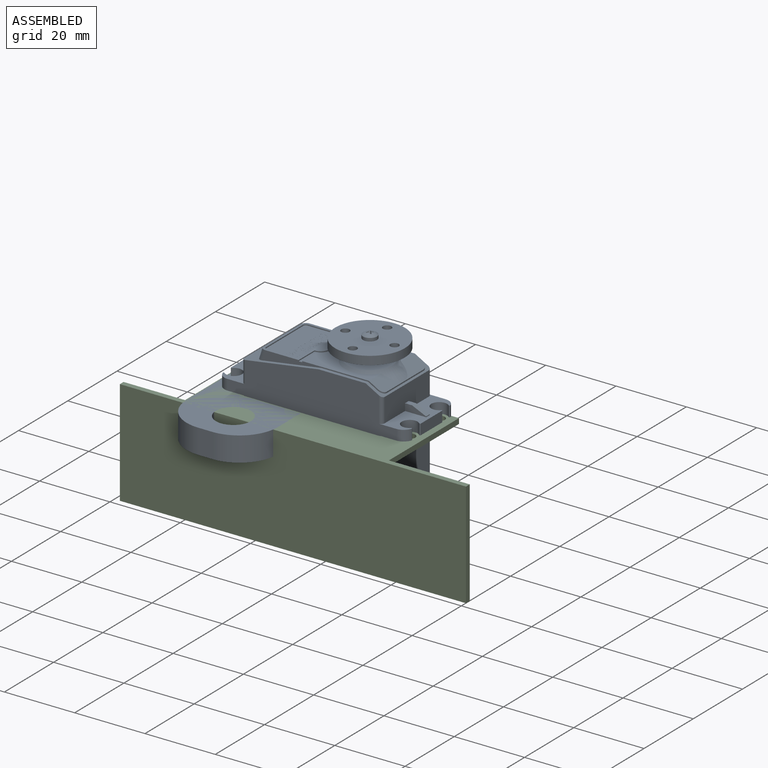
[diagram: assembled view]
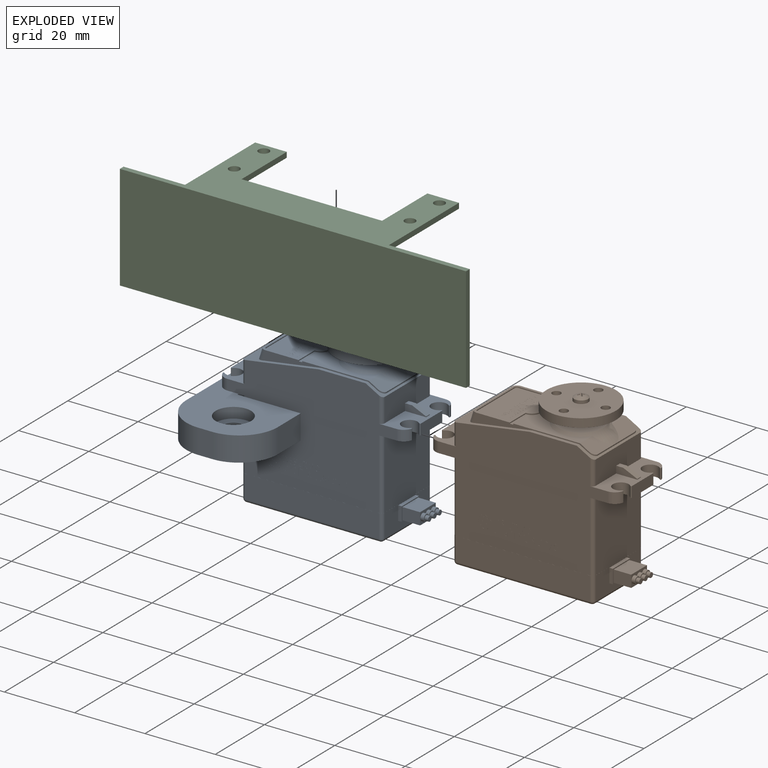
[diagram: exploded view]
GUIDED TOUR — FREECAD ASSEMBLY "servo_DS3218MG"

This assembly has 3 components, labeled P0..P2 below (a component is one placed body or linked part; the same part can appear more than once), held together by 0 modeled joints plus 3 derived contact edges. A joint is a constraint between two components; its type names the relative motion it leaves free:
  CONTACT — a derived adjacency edge — the two components touch in the source model (clearance under 2% of the assembly's diagonal); it is measured from the geometry, not a modeled constraint.
Axis/direction vectors are unit vectors and 'through' points are millimeter coordinates, both in the assembly's world frame.

MATES
  1. CONTACT "contact_0_1": P0 <-> P1, contact direction (1.000, 0.000, 0.000) through (-0.12, 2.50, 3.00) mm (derived from contact, not a modeled constraint)
  2. CONTACT "contact_0_2": P0 <-> P2, contact direction (0.000, 0.000, 1.000) through (10.27, -9.64, -13.95) mm (derived from contact, not a modeled constraint)
  3. CONTACT "contact_1_2": P1 <-> P2, contact direction (0.000, 0.000, 1.000) through (10.27, -9.64, -13.95) mm (derived from contact, not a modeled constraint)

ASSEMBLY ORDER
  1. P0 — the base component [order heuristic]
  2. P1 [order heuristic]
  3. P2 [order heuristic]
Order-tag legend:
  [order heuristic] — this assembly is geometrically interlocked (no collision-free removal order exists), so components are listed in mate-graph order; insertion feasibility is not verified.

Of the 3 components, 3 carry a construction recipe — the FreeCAD feature program (sketches with constraints, then the solid features that consume them) that regenerates the part from scratch, quoted from this document or from the linked companion document it references; the rest are supplied as boundary geometry only. The tour below walks the components in assembly order: each is shown spotlighted twice — in the assembled view, then in the exploded view, where a leader line traces a displaced component back to its assembled socket (components that stay in place when exploded have no leader line; saturated green if recipe-attached, orange if geometry-only; every other component desaturated gray) — followed by its recipe or geometry summary and the mates that hold it.
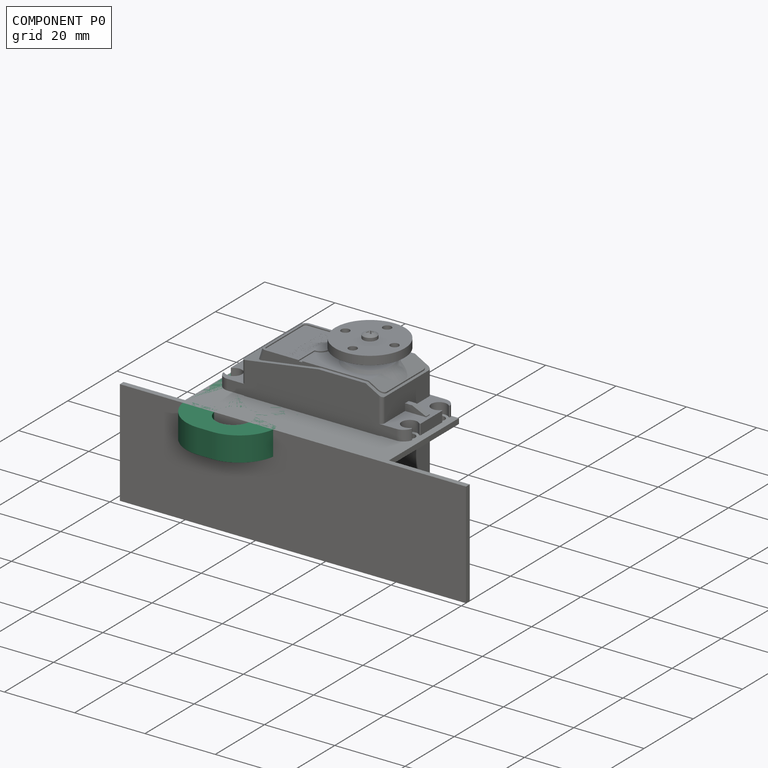
[diagram: component P0 — assembled]
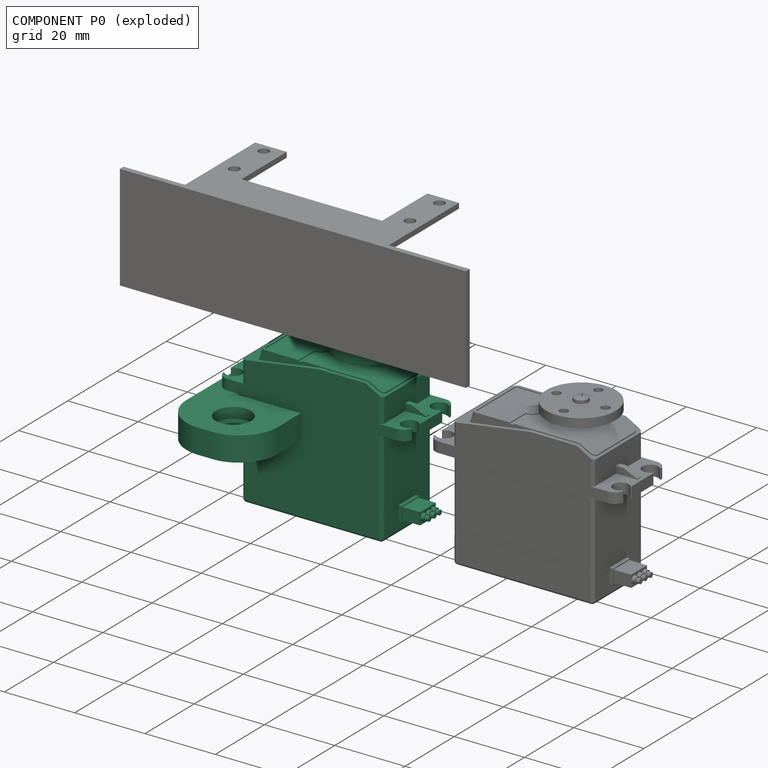
[diagram: component P0 — exploded]
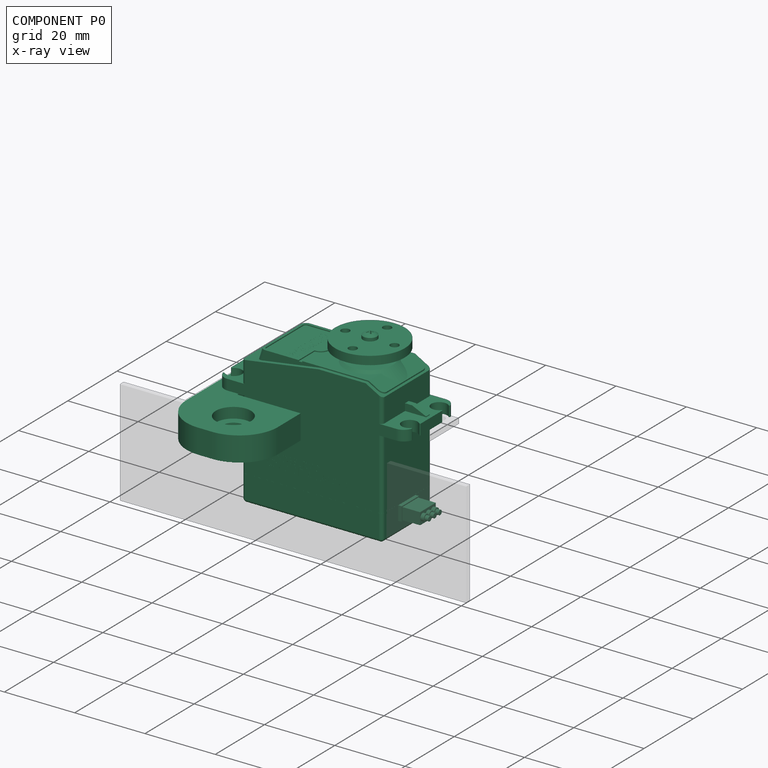
[diagram: component P0 — x-ray view]
COMPONENT P0 — recipe-attached ("support_servo_2", modeled in this document).
Held by: resting contact with P1 (derived edge); resting contact with P2 (derived edge).
Construction recipe (the document's own serialized feature program — sketch geometry with constraints, then the solid features built on it; lengths are millimeters unless a unit is written):

FEATURE [Sketcher::SketchObject] Sketch004
  FullyConstrained = true
  MapMode = 5
  Placement = pos=(0,0,0) rot=(0,1,0;3.14159rad)
  Support = -> [XY_Plane005]
  sketch-geometry (9):
    g0: LineSegment StartX=29 StartY=10 StartZ=0 EndX=29 EndY=-30.5 EndZ=0
    g1: LineSegment StartX=29 StartY=-30.5 StartZ=0 EndX=3 EndY=-30.5 EndZ=0
    g2: LineSegment StartX=3 StartY=-30.5 StartZ=0 EndX=3 EndY=-10.3 EndZ=0
    g3: LineSegment StartX=3 StartY=-10.3 StartZ=0 EndX=21 EndY=-10.3 EndZ=0
    g4: LineSegment StartX=21 StartY=-10.3 StartZ=0 EndX=21 EndY=10 EndZ=0
    g5: LineSegment StartX=29 StartY=10 StartZ=0 EndX=21 EndY=10 EndZ=0
    g6: Circle CenterX=25 CenterY=6 CenterZ=0 NormalX=0 NormalY=0 NormalZ=1 AngleXU=0 Radius=2
    g7: Circle CenterX=25 CenterY=-6 CenterZ=0 NormalX=0 NormalY=0 NormalZ=1 AngleXU=0 Radius=2
    g8: GeomPoint X=25 Y=10 Z=0
  constraints (24):
    c: Vertical(g0)
    c: Coincident(g1,g2)
    c: Coincident(g2,g3)
    c: Coincident(g3,g4)
    c: Horizontal(g1)
    c: Horizontal(g3)
    c: Vertical(g2)
    c: Vertical(g4)
    c: Coincident(g0,g1)
    c: Coincident(g5,g0)
    c: Horizontal(g5)
    c: DistanceY(g-1,g5) = 10
    c: DistanceX(g3,g0) = 8
    c: Coincident(g4,g5)
    c: Symmetric(g7,g6,g-1)
    c: Equal(g7,g6)
    c: Diameter(g6) = 4
    c: DistanceX(g6) = 25
    c: DistanceY(g6) = 6
    c: Vertical(g8,g6)
    c: Symmetric(g4,g0,g8)
    c: DistanceY(g2,g-1) = 10.3
    c: DistanceY(g0,g0) = 40.5
    c: DistanceX(g3,g3) = 18
FEATURE [PartDesign::Pad] Pad001
  Direction = (0,0,-1)
  Length = 7
  Length2 = 10
  Profile = -> Sketch004
  ReferenceAxis = -> Sketch004 [N_Axis]
  Type = 0
FEATURE [Sketcher::SketchObject] Sketch005
  FullyConstrained = false
  MapMode = 5
  Support = -> [XY_Plane005]
  sketch-geometry (1):
    g0: Circle CenterX=-15 CenterY=-20.5 CenterZ=0 NormalX=0 NormalY=0 NormalZ=1 AngleXU=0 Radius=4.8517
  constraints (2):
    c: DistanceY(g0,g-1) = 20.5
    c: DistanceX(g0,g-1) = 15
FEATURE [PartDesign::Hole] Hole
  BaseFeature = -> Pad001
  CustomThreadClearance = 0
  Depth = 25
  DepthType = 0
  Diameter = 5.5
  DrillForDepth = false
  DrillPoint = 1
  DrillPointAngle = 118
  HoleCutCountersinkAngle = 90
  HoleCutCustomValues = false
  HoleCutDepth = 3
  HoleCutDiameter = 10
  HoleCutType = 1
  ModelThread = false
  Profile = -> Sketch005
  Tapered = false
  TaperedAngle = 90
  ThreadClass = 0
  ThreadDepth = 25
  ThreadDepthType = 0
  ThreadDirection = 0
  ThreadFit = 0
  ThreadSize = 13
  ThreadType = 1
  Threaded = false
  UseCustomThreadClearance = false
FEATURE [PartDesign::Fillet] Fillet
  Base = -> Hole [Edge2,Edge8]
  BaseFeature = -> Hole
  Radius = 11
  SupportTransform = false
  UseAllEdges = false
FEATURE [PartDesign::Body] Body002  label="Corps002"
  Group = -> [Sketch004,Pad001,Sketch005,Hole,Fillet]
  Origin = -> Origin005
  Placement = pos=(-9.5,0,-14) rot=(0,0,1;0rad)
  Tip = -> Fillet
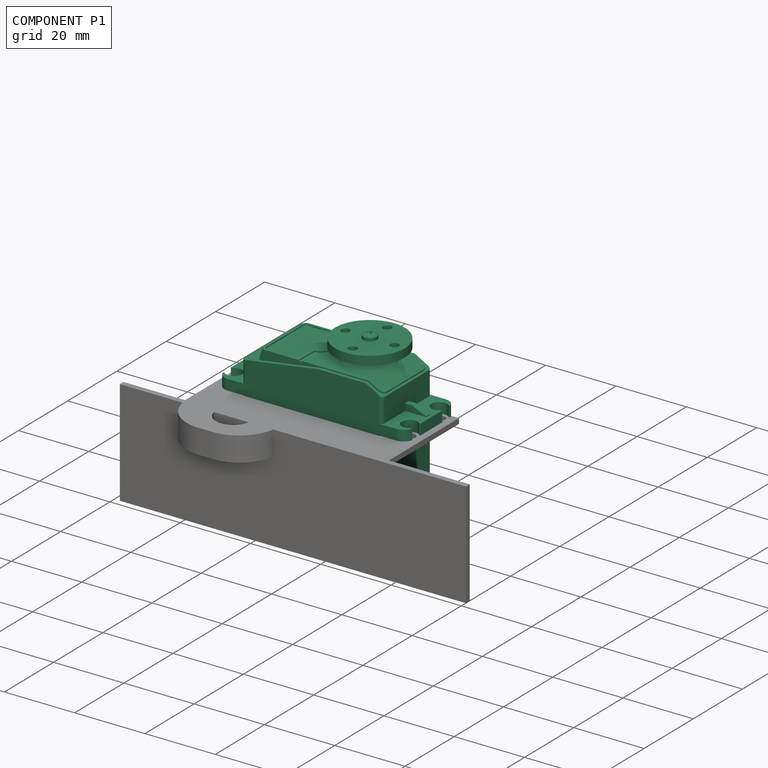
[diagram: component P1 — assembled]
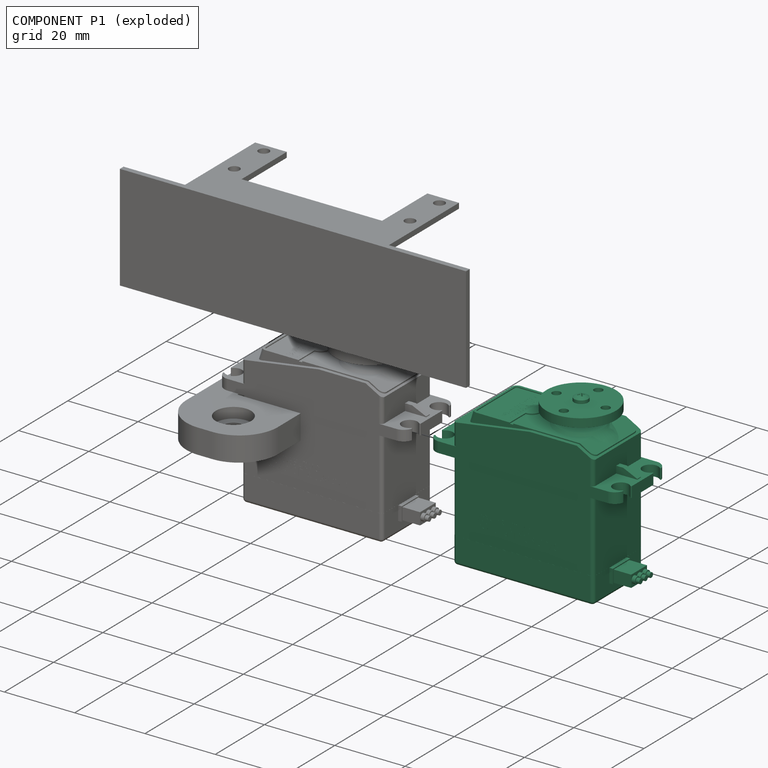
[diagram: component P1 — exploded]
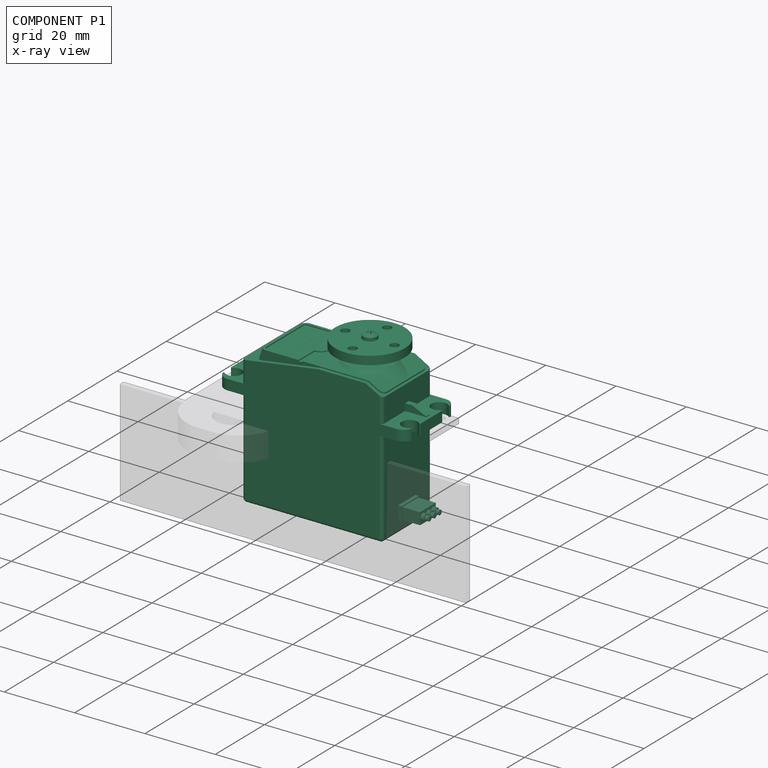
[diagram: component P1 — x-ray view]
COMPONENT P1 — recipe-attached ("servo_DS3218MG", modeled in this document).
Held by: resting contact with P0 (derived edge); resting contact with P2 (derived edge).
Construction recipe (the document's own serialized feature program — sketch geometry with constraints, then the solid features built on it; lengths are millimeters unless a unit is written):

FEATURE [Sketcher::SketchObject] Sketch001
  FullyConstrained = true
  MapMode = 5
  Support = -> [XY_Plane002]
  sketch-geometry (1):
    g0: Circle CenterX=-7 CenterY=0 CenterZ=0 NormalX=0 NormalY=0 NormalZ=1 AngleXU=0 Radius=1.2
  constraints (3):
    c: PointOnObject(g0,g-1)
    c: Diameter(g0) = 2.4
    c: DistanceX(g0,g-1) = 7
FEATURE [Sketcher::SketchObject] Sketch
  FullyConstrained = true
  MapMode = 5
  Placement = pos=(0,0,0) rot=(1,0,0;1.5708rad)
  Support = -> [XZ_Plane002]
  expr: Constraints[19] = 19.8 / 2
  sketch-geometry (8):
    g0: LineSegment StartX=2.5 StartY=3.4 StartZ=0 EndX=2.5 EndY=0 EndZ=0
    g1: LineSegment StartX=2.5 StartY=0 StartZ=0 EndX=4.2 EndY=0 EndZ=0
    g2: LineSegment StartX=4.2 StartY=0 StartZ=0 EndX=4.2 EndY=2 EndZ=0
    g3: LineSegment StartX=4.2 StartY=2 StartZ=0 EndX=9.9 EndY=2 EndZ=0
    g4: LineSegment StartX=9.9 StartY=2 StartZ=0 EndX=9.9 EndY=4.4 EndZ=0
    g5: LineSegment StartX=9.9 StartY=4.4 StartZ=0 EndX=1.5 EndY=4.4 EndZ=0
    g6: LineSegment StartX=1.5 StartY=4.4 StartZ=0 EndX=1.5 EndY=3.4 EndZ=0
    g7: LineSegment StartX=1.5 StartY=3.4 StartZ=0 EndX=2.5 EndY=3.4 EndZ=0
  constraints (24):
    c: PointOnObject(g0,g-1)
    c: Vertical(g0)
    c: Coincident(g1,g0)
    c: PointOnObject(g1,g-1)
    c: Coincident(g2,g1)
    c: Vertical(g2)
    c: Coincident(g3,g2)
    c: Horizontal(g3)
    c: Coincident(g4,g3)
    c: Vertical(g4)
    c: Coincident(g5,g4)
    c: Horizontal(g5)
    c: Coincident(g6,g5)
    c: Coincident(g7,g6)
    c: Coincident(g7,g0)
    c: Horizontal(g7)
    c: Vertical(g6)
    c: DistanceY(g4,g4) = 2.4
    c: DistanceY(g2,g2) = 2
    c: DistanceX(g-1,g4) = 9.9
    c: DistanceX(g-1,g6) = 1.5
    c: DistanceY(g0,g0) = 3.4
    c: DistanceX(g-1,g0) = 2.5
    c: DistanceX(g1,g1) = 1.7
FEATURE [PartDesign::Revolution] Revolution
  Angle = 360
  Axis = (0,2e-16,1)
  Base = (0,0,0)
  Placement = pos=(0,0,0) rot=(1,0,0;1.5708rad)
  Profile = -> Sketch
  ReferenceAxis = -> Sketch [V_Axis]
  Reversed = true
FEATURE [PartDesign::Pocket] Pocket
  BaseFeature = -> Revolution
  Direction = (0,0,-1)
  Length = 5
  Length2 = 5
  Midplane = true
  Placement = pos=(0,0,0) rot=(1,0,0;1.5708rad)
  Profile = -> Sketch001
  ReferenceAxis = -> Sketch001 [N_Axis]
  Type = 1
FEATURE [PartDesign::PolarPattern] PolarPattern
  Angle = 360
  Axis = -> Sketch001 [N_Axis]
  BaseFeature = -> Pocket
  Occurrences = 4
  Originals = -> [Pocket]
  Placement = pos=(0,0,0) rot=(1,0,0;1.5708rad)
FEATURE [PartDesign::Body] Body  label="Corps"
  Group = -> [Sketch,Revolution,Sketch001,Pocket,PolarPattern]
  Origin = -> Origin002
  Placement = pos=(0,0,0.4) rot=(0,0,1;0rad)
  Tip = -> PolarPattern
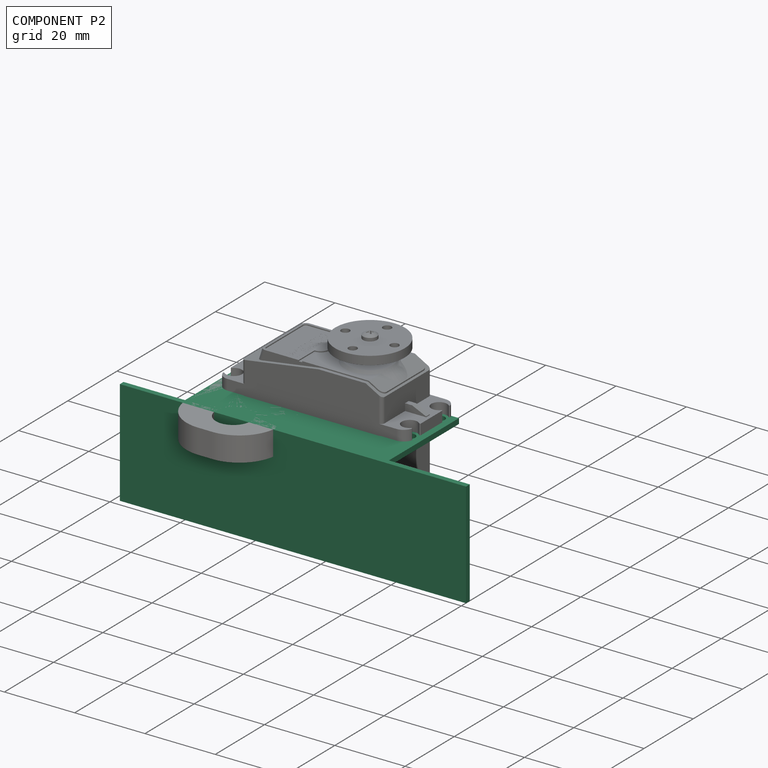
[diagram: component P2 — assembled]
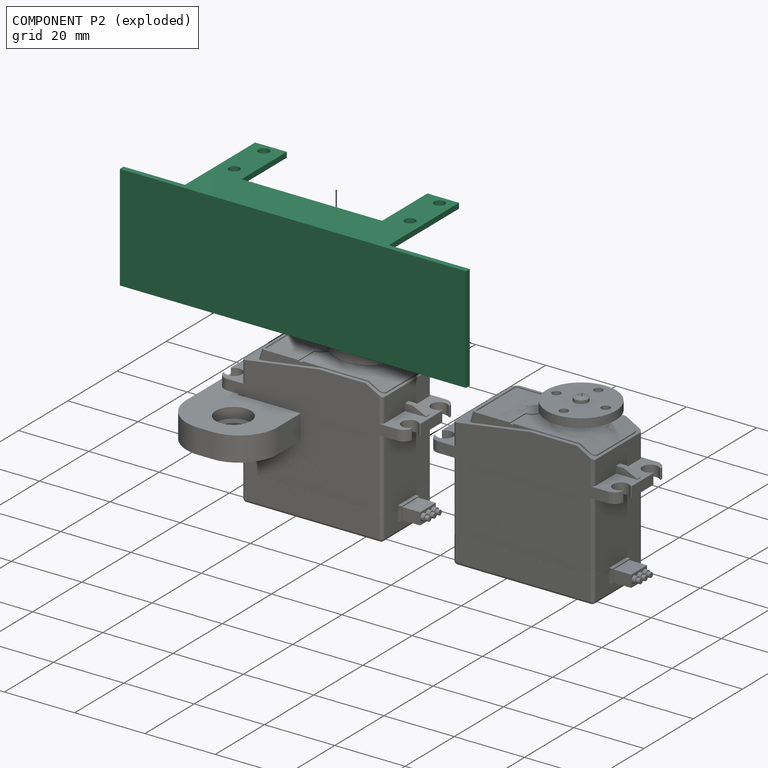
[diagram: component P2 — exploded]
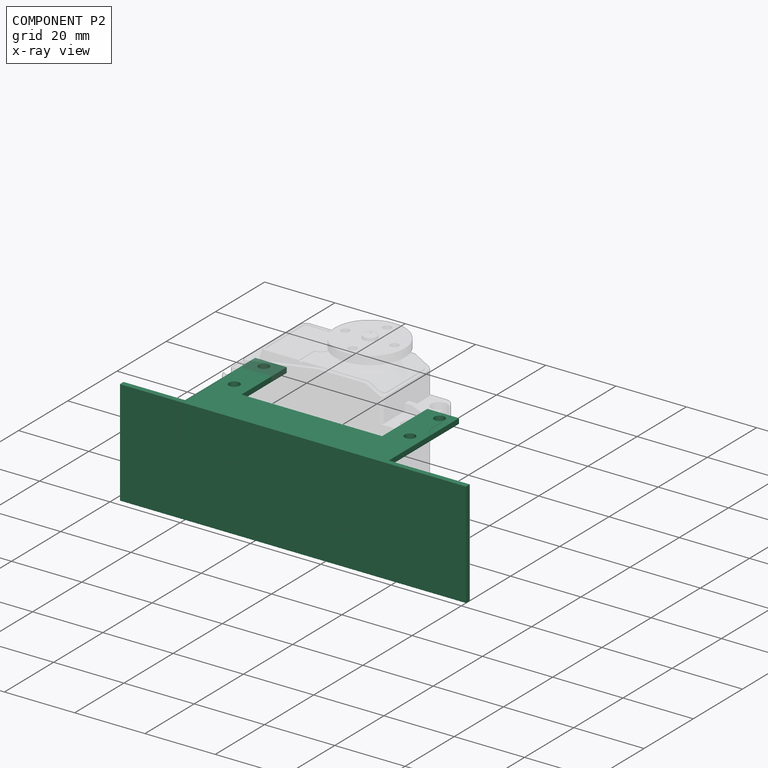
[diagram: component P2 — x-ray view]
COMPONENT P2 — recipe-attached ("support_servo_1", modeled in this document).
Held by: resting contact with P0 (derived edge); resting contact with P1 (derived edge).
Construction recipe (the document's own serialized feature program — sketch geometry with constraints, then the solid features built on it; lengths are millimeters unless a unit is written):

FEATURE [Sketcher::SketchObject] Sketch002
  AttachmentOffset = pos=(0,-14,0) rot=(0,0,1;0rad)
  FullyConstrained = true
  MapMode = 5
  Placement = pos=(3.1e-15,-3.1e-15,-14) rot=(0.57735,0.57735,0.57735;2.0944rad)
  Support = -> [YZ_Plane004]
  sketch-geometry (6):
    g0: LineSegment StartX=-21.3 StartY=-30 StartZ=0 EndX=-21.3 EndY=0 EndZ=0
    g1: LineSegment StartX=-21.3 StartY=0 StartZ=0 EndX=8.7 EndY=0 EndZ=0
    g2: LineSegment StartX=8.7 StartY=0 StartZ=0 EndX=8.7 EndY=-1.5 EndZ=0
    g3: LineSegment StartX=8.7 StartY=-1.5 StartZ=0 EndX=-19.8 EndY=-1.5 EndZ=0
    g4: LineSegment StartX=-19.8 StartY=-1.5 StartZ=0 EndX=-19.8 EndY=-30 EndZ=0
    g5: LineSegment StartX=-21.3 StartY=-30 StartZ=0 EndX=-19.8 EndY=-30 EndZ=0
  constraints (18):
    c: Vertical(g0)
    c: Coincident(g1,g0)
    c: PointOnObject(g1,g-1)
    c: Horizontal(g1)
    c: Coincident(g2,g1)
    c: Vertical(g2)
    c: Coincident(g3,g2)
    c: Horizontal(g3)
    c: Coincident(g4,g3)
    c: Vertical(g4)
    c: Coincident(g5,g0)
    c: Coincident(g5,g4)
    c: Horizontal(g5)
    c: Equal(g5,g2)
    c: DistanceX(g5,g5) = 1.5
    c: DistanceY(g0,g0) = 30
    c: DistanceX(g1,g1) = 30
    c: DistanceX(g-1,g1) = 8.7
FEATURE [PartDesign::Pad] Pad
  Direction = (1,-2e-16,3e-16)
  Length = 98.5
  Length2 = 10
  Midplane = true
  Placement = pos=(0,0,0) rot=(0.57735,0.57735,0.57735;2.0944rad)
  Profile = -> Sketch002
  ReferenceAxis = -> Sketch002 [N_Axis]
  Type = 0
FEATURE [Sketcher::SketchObject] Sketch003
  ExternalGeometry = -> [Pad]
  FullyConstrained = true
  MapMode = 5
  Support = -> [XY_Plane004]
  sketch-geometry (18):
    g0: LineSegment StartX=49.25 StartY=8.7 StartZ=0 EndX=26.25 EndY=8.7 EndZ=0
    g1: LineSegment StartX=26.25 StartY=8.7 StartZ=0 EndX=26.25 EndY=-19.8 EndZ=0
    g2: LineSegment StartX=26.25 StartY=-19.8 StartZ=0 EndX=49.25 EndY=-19.8 EndZ=0
    g3: LineSegment StartX=49.25 StartY=-19.8 StartZ=0 EndX=49.25 EndY=8.7 EndZ=0
    g4: LineSegment StartX=-49.25 StartY=8.7 StartZ=0 EndX=-31.75 EndY=8.7 EndZ=0
    g5: LineSegment StartX=-31.75 StartY=8.7 StartZ=0 EndX=-31.75 EndY=-19.8 EndZ=0
    g6: LineSegment StartX=-31.75 StartY=-19.8 StartZ=0 EndX=-49.25 EndY=-19.8 EndZ=0
    g7: LineSegment StartX=-49.25 StartY=-19.8 StartZ=0 EndX=-49.25 EndY=8.7 EndZ=0
    g8: LineSegment StartX=-22.75 StartY=8.7 StartZ=0 EndX=17.25 EndY=8.7 EndZ=0
    g9: LineSegment StartX=17.25 StartY=8.7 StartZ=0 EndX=17.25 EndY=-9.7 EndZ=0
    g10: LineSegment StartX=17.25 StartY=-9.7 StartZ=0 EndX=-22.75 EndY=-9.7 EndZ=0
    g11: LineSegment StartX=-22.75 StartY=-9.7 StartZ=0 EndX=-22.75 EndY=8.7 EndZ=0
    g12: LineSegment StartX=-22.75 StartY=8.7 StartZ=0 EndX=-31.75 EndY=8.7 EndZ=0
    g13: LineSegment StartX=17.25 StartY=8.7 StartZ=0 EndX=26.25 EndY=8.7 EndZ=0
    g14: Circle CenterX=22.6 CenterY=6 CenterZ=0 NormalX=0 NormalY=0 NormalZ=1 AngleXU=0 Radius=1.5
    g15: Circle CenterX=22.6 CenterY=-6 CenterZ=0 NormalX=0 NormalY=0 NormalZ=1 AngleXU=0 Radius=1.5
    g16: Circle CenterX=-27.4 CenterY=6 CenterZ=0 NormalX=0 NormalY=0 NormalZ=1 AngleXU=0 Radius=1.5
    g17: Circle CenterX=-27.4 CenterY=-6 CenterZ=0 NormalX=0 NormalY=0 NormalZ=1 AngleXU=0 Radius=1.5
  constraints (49):
    c: Coincident(g0,g1)
    c: Coincident(g1,g2)
    c: Coincident(g2,g3)
    c: Coincident(g3,g0)
    c: Horizontal(g0)
    c: Horizontal(g2)
    c: Vertical(g1)
    c: Vertical(g3)
    c: Coincident(g4,g5)
    c: Coincident(g5,g6)
    c: Coincident(g6,g7)
    c: Coincident(g7,g4)
    c: Horizontal(g4)
    c: Horizontal(g6)
    c: Vertical(g5)
    c: Vertical(g7)
    c: DistanceX(g0,g0) = 23
    c: Coincident(g0,g-3)
    c: DistanceY(g-3,g2) = 1.5
    c: DistanceX(g4,g4) = 17.5
    c: Coincident(g4,g-4)
    c: Horizontal(g5,g1)
    c: Coincident(g8,g9)
    c: Coincident(g9,g10)
    c: Coincident(g10,g11)
    c: Coincident(g11,g8)
    c: Horizontal(g8)
    c: Horizontal(g10)
    c: Vertical(g9)
    c: Vertical(g11)
    c: DistanceY(g-4,g10) = 11.6
    c: Horizontal(g4,g8)
    c: DistanceX(g8,g8) = 40
    c: Coincident(g12,g8)
    c: Coincident(g12,g4)
    c: Coincident(g13,g8)
    c: Coincident(g13,g0)
    c: Equal(g12,g13)
    c: Horizontal(g16,g14)
    c: Vertical(g14,g15)
    c: Horizontal(g15,g17)
    c: Equal(g16,g17)
    c: Equal(g16,g15)
    c: Equal(g16,g14)
    c: Diameter(g16) = 3
    c: DistanceX(g16,g14) = 50
    c: DistanceY(g17,g16) = 12
    c: Symmetric(g16,g17,g-1)
    c: DistanceX(g16,g-1) = 27.4
FEATURE [PartDesign::Pocket] Pocket001
  BaseFeature = -> Pad
  Direction = (0,0,-1)
  Length = 5
  Length2 = 5
  Placement = pos=(0,0,0) rot=(0.57735,0.57735,0.57735;2.0944rad)
  Profile = -> Sketch003
  ReferenceAxis = -> Sketch003 [N_Axis]
  Type = 1
FEATURE [PartDesign::Body] Body001  label="Corps001"
  Group = -> [Sketch002,Pad,Sketch003,Pocket001]
  Origin = -> Origin004
  Placement = pos=(-7,0,0) rot=(0,0,1;0rad)
  Tip = -> Pocket001
PROVENANCE & LICENSES
Assembly and component geometry: a FreeCAD (.FCStd) document from a public repository crawl; components, placements and joints were extracted with FreeCAD and each solid tessellated.
Construction recipes: the document's own serialized feature recipes (and, for linked parts, the recipes of companion documents from the same project).
License: as declared in the source repository (recorded in the dataset sidecar).
Joints: native FreeCAD joints and A2plus constraints are mapped to standard mate types; edges marked 'derived from contact' connect touching components and are measured from the geometry, not modeled.
Verification: 3 of this assembly's 3 components carry a construction recipe (3 from this document itself); the rest are geometry-only. Every component's tessellation passed the extraction mesh gates (mesh-volume checksum against the B-rep where available, bounding-box inflation <= 2%).
Renders: orthographic iso camera (az 35 / el 25); the floor grid conveys scale (grid pitch printed in each image; no ruler). In the exploded view each component is displaced by its stored offset vector: the offsets alone carry the explosion direction (mate normal/axis signs are not orientation cues and do not encode it), and separation distances are assigned per mate-chain, not proportionally to assembly-order depth.
